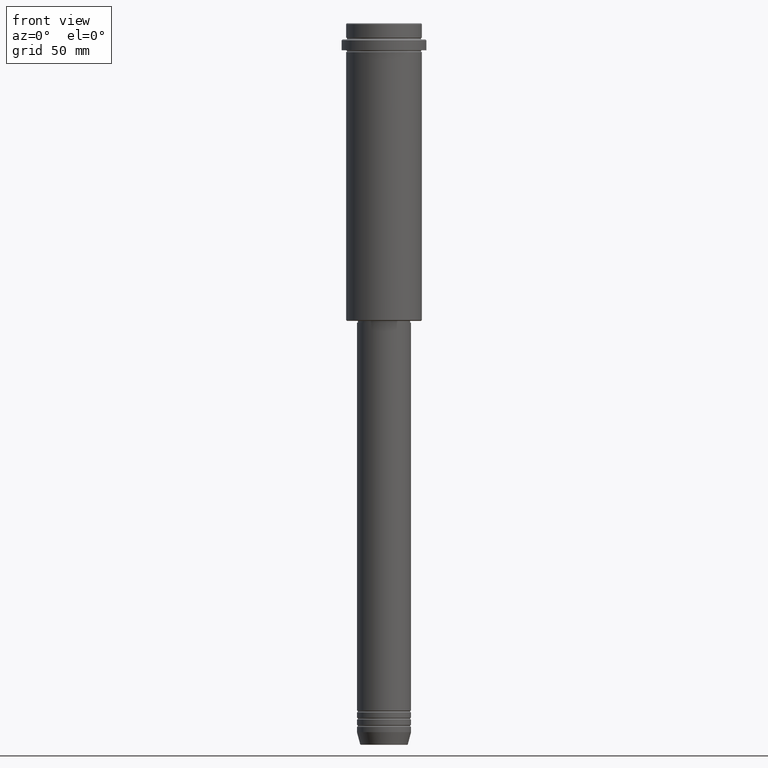
[diagram: clean part render]
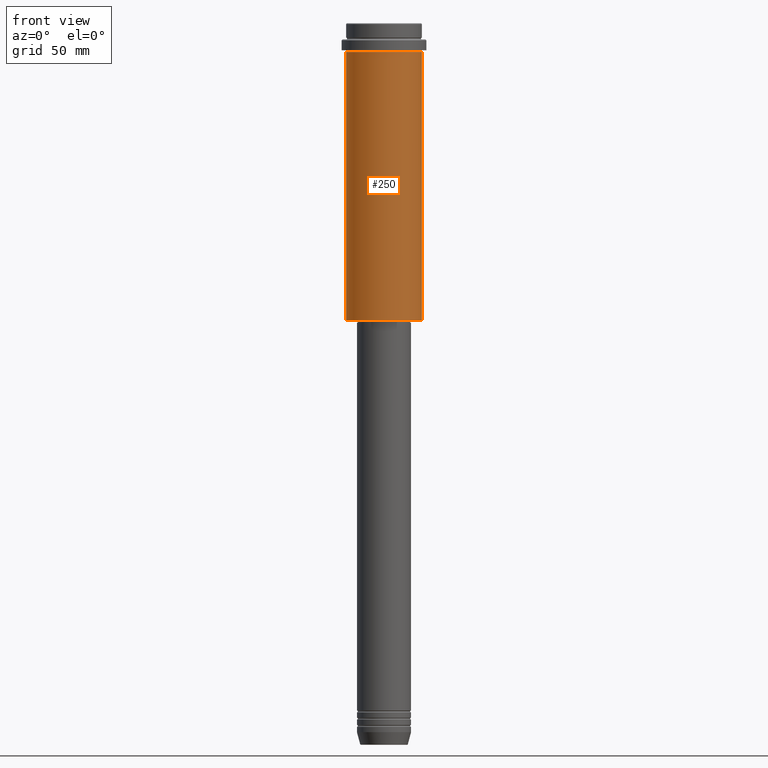
[diagram: same view with one face highlighted and labeled with its STEP entity id]
A machine part, front view. The second image highlights one B-rep face of the part: STEP entity #250.
In plain terms, the highlighted cylindrical surface (partial cylindrical patch) has radius 21 mm, axis along (-0, -0, 1).
Its self-contained STEP definition (entity closure, byte-faithful):
#84 = AXIS2_PLACEMENT_3D ( 'NONE', #345, #108, #1208 ) ;
#107 = CARTESIAN_POINT ( 'NONE',  ( 0.000000000000000000, 0.000000000000000000, 0.000000000000000000 ) ) ;
#108 = DIRECTION ( 'NONE',  ( -0.000000000000000000, -0.000000000000000000, 1.000000000000000000 ) ) ;
#129 = AXIS2_PLACEMENT_3D ( 'NONE', #107, #743, #1187 ) ;
#210 = ORIENTED_EDGE ( 'NONE', *, *, #1414, .T. ) ;
#250 = ADVANCED_FACE ( 'NONE', ( #913 ), #1076, .T. ) ;
#269 = CARTESIAN_POINT ( 'NONE',  ( 0.000000000000000000, 0.000000000000000000, -16.00000000000000355 ) ) ;
#345 = CARTESIAN_POINT ( 'NONE',  ( 0.000000000000000000, 0.000000000000000000, -164.4999999999999147 ) ) ;
#346 = DIRECTION ( 'NONE',  ( -0.000000000000000000, -0.000000000000000000, 1.000000000000000000 ) ) ;
#358 = VECTOR ( 'NONE', #346, 1000.000000000000000 ) ;
#368 = VERTEX_POINT ( 'NONE', #938 ) ;
#436 = CARTESIAN_POINT ( 'NONE',  ( -20.99999999999999645, 2.571758278209441267E-15, -16.00000000000000355 ) ) ;
#506 = ORIENTED_EDGE ( 'NONE', *, *, #1162, .F. ) ;
#543 = VERTEX_POINT ( 'NONE', #1344 ) ;
#601 = ORIENTED_EDGE ( 'NONE', *, *, #1036, .T. ) ;
#676 = EDGE_LOOP ( 'NONE', ( #1361, #210, #601, #506 ) ) ;
#688 = AXIS2_PLACEMENT_3D ( 'NONE', #269, #1225, #1120 ) ;
#743 = DIRECTION ( 'NONE',  ( -0.000000000000000000, -0.000000000000000000, 1.000000000000000000 ) ) ;
#769 = LINE ( 'NONE', #1198, #358 ) ;
#815 = VERTEX_POINT ( 'NONE', #937 ) ;
#870 = DIRECTION ( 'NONE',  ( -0.000000000000000000, -0.000000000000000000, 1.000000000000000000 ) ) ;
#913 = FACE_OUTER_BOUND ( 'NONE', #676, .T. ) ;
#935 = VERTEX_POINT ( 'NONE', #436 ) ;
#937 = CARTESIAN_POINT ( 'NONE',  ( 20.99999999999999645, 0.000000000000000000, -16.00000000000000355 ) ) ;
#938 = CARTESIAN_POINT ( 'NONE',  ( -20.99999999999999645, 2.571758278209441267E-15, -164.4999999999999147 ) ) ;
#980 = LINE ( 'NONE', #1087, #1249 ) ;
#983 = EDGE_CURVE ( 'NONE', #368, #935, #980, .T. ) ;
#1036 = EDGE_CURVE ( 'NONE', #543, #815, #769, .T. ) ;
#1076 = CYLINDRICAL_SURFACE ( 'NONE', #129, 20.99999999999999645 ) ;
#1087 = CARTESIAN_POINT ( 'NONE',  ( -20.99999999999999645, 2.571758278209441267E-15, 0.000000000000000000 ) ) ;
#1120 = DIRECTION ( 'NONE',  ( 1.000000000000000000, 0.000000000000000000, 0.000000000000000000 ) ) ;
#1153 = CIRCLE ( 'NONE', #688, 20.99999999999999645 ) ;
#1162 = EDGE_CURVE ( 'NONE', #935, #815, #1153, .T. ) ;
#1180 = CIRCLE ( 'NONE', #84, 20.99999999999999645 ) ;
#1187 = DIRECTION ( 'NONE',  ( 1.000000000000000000, 0.000000000000000000, 0.000000000000000000 ) ) ;
#1198 = CARTESIAN_POINT ( 'NONE',  ( 20.99999999999999645, 0.000000000000000000, 0.000000000000000000 ) ) ;
#1208 = DIRECTION ( 'NONE',  ( -1.000000000000000000, 0.000000000000000000, 0.000000000000000000 ) ) ;
#1225 = DIRECTION ( 'NONE',  ( -0.000000000000000000, -0.000000000000000000, 1.000000000000000000 ) ) ;
#1249 = VECTOR ( 'NONE', #870, 1000.000000000000000 ) ;
#1344 = CARTESIAN_POINT ( 'NONE',  ( 20.99999999999999645, 0.000000000000000000, -164.4999999999999147 ) ) ;
#1361 = ORIENTED_EDGE ( 'NONE', *, *, #983, .F. ) ;
#1414 = EDGE_CURVE ( 'NONE', #368, #543, #1180, .T. ) ;